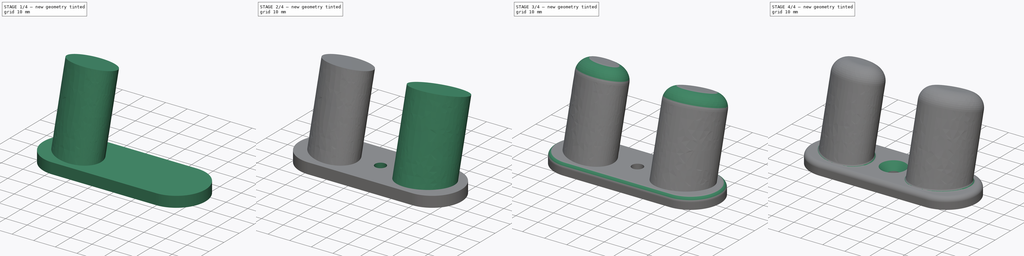
[diagram: build sequence overview — one tinted view per stage of 4, left to right]
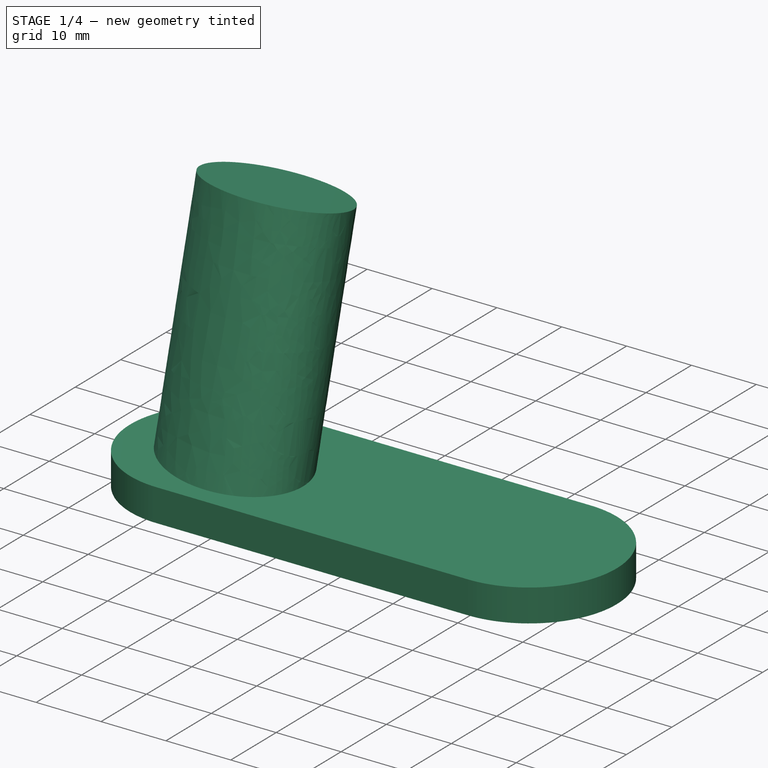
[diagram: stage 1 of 4 — iso view after this stage's code; geometry added in this stage tinted green]
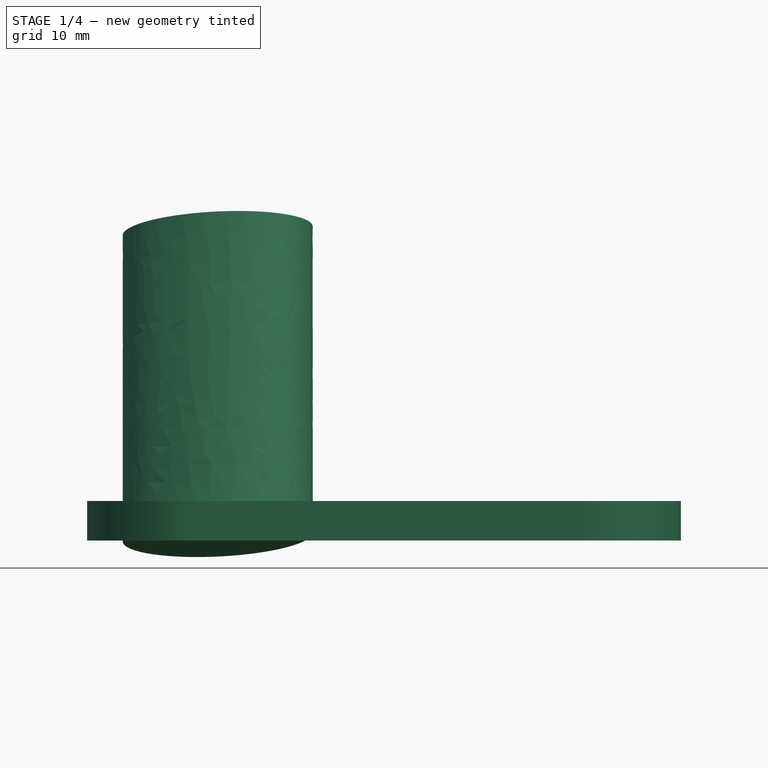
[diagram: stage 1 of 4 — front view after this stage's code; geometry added in this stage tinted green]
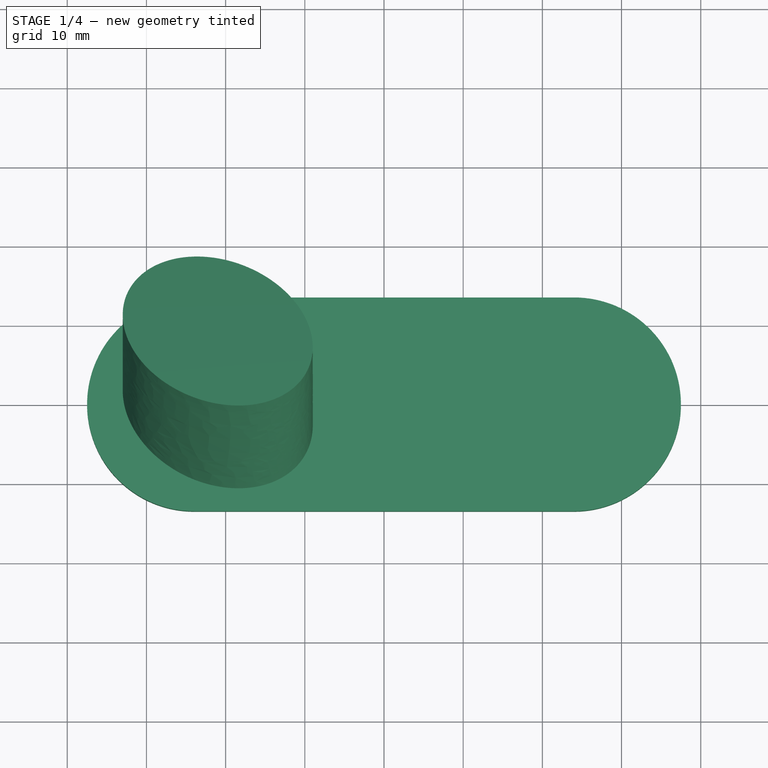
[diagram: stage 1 of 4 — top view after this stage's code; geometry added in this stage tinted green]
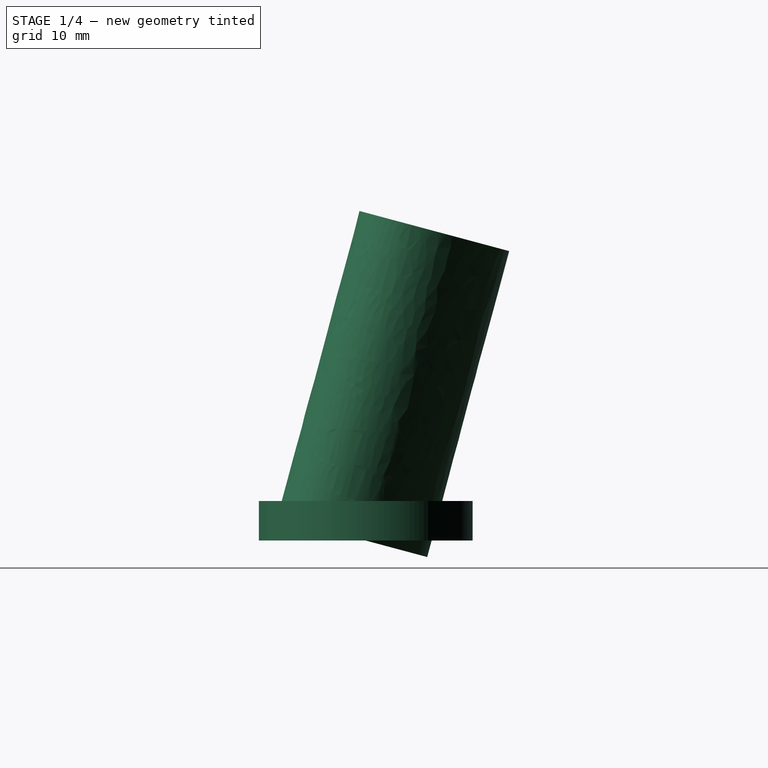
[diagram: stage 1 of 4 — right view after this stage's code; geometry added in this stage tinted green]
FCSTD DOCUMENT  (FreeCAD 0.20RUnknown)
Label: schuko_hook
License: All rights reserved
LicenseURL: http://en.wikipedia.org/wiki/All_rights_reserved
objects: Sketcher::SketchObject×3, PartDesign::Fillet×3, PartDesign::Pad×2, PartDesign::Pocket×1, PartDesign::Mirrored×1, PartDesign::SubtractiveBox×1, PartDesign::Chamfer×1, PartDesign::Body×1
note: 21 computed .brp shape members not serialized (recipe doc carries the construction recipe); baked Part::Feature solids carry a one-line shape summary decoded from their .brp

FEATURE [Sketcher::SketchObject] Sketch  label="BasePadSketch"
  FullyConstrained = true
  MapMode = 5
  Support = -> [XY_Plane]
  sketch-geometry (6):
    g0: ArcOfCircle CenterX=-24 CenterY=0 CenterZ=0 NormalX=0 NormalY=0 NormalZ=1 AngleXU=0 Radius=13.5 StartAngle=1.5708 EndAngle=4.71239
    g1: ArcOfCircle CenterX=24 CenterY=0 CenterZ=0 NormalX=0 NormalY=0 NormalZ=1 AngleXU=0 Radius=13.5 StartAngle=4.71239 EndAngle=7.85398
    g2: LineSegment StartX=-24 StartY=-13.5 StartZ=0 EndX=24 EndY=-13.5 EndZ=0
    g3: LineSegment StartX=24 StartY=13.5 StartZ=0 EndX=-24 EndY=13.5 EndZ=0
    g4: GeomPoint X=-37.5 Y=0 Z=0
    g5: GeomPoint X=37.5 Y=0 Z=0
  constraints (13):
    c: Tangent(g0,g2) = -1.5708
    c: Tangent(g2,g1) = -1.5708
    c: Tangent(g1,g3) = -1.5708
    c: Tangent(g3,g0) = -1.5708
    c: Equal(g0,g1)
    c: PointOnObject(g0,g-1)
    c: Symmetric(g0,g1,g-1)
    c: DistanceY(g0,g0) = 27
    c: PointOnObject(g4,g-1)
    c: PointOnObject(g5,g-1)
    c: PointOnObject(g4,g0)
    c: PointOnObject(g5,g1)
    c: DistanceX(g4,g5) = 75
FEATURE [PartDesign::Pad] Pad  label="BasePad"
  Direction = (0,0,1)
  Length = 5
  Length2 = 10
  Profile = -> Sketch
  ReferenceAxis = -> Sketch [N_Axis]
  Type = 0
FEATURE [Sketcher::SketchObject] Sketch001  label="ArmsSketch"
  AttachmentOffset = pos=(0,0,0) rot=(1,0,0;-0.261799rad)
  ExternalGeometry = -> [Sketch]
  FullyConstrained = true
  MapMode = 5
  Placement = pos=(0,0,0) rot=(1,0,0;6.02139rad)
  Support = -> [XY_Plane]
  sketch-geometry (11):
    g0: Ellipse CenterX=-21 CenterY=-1.75 CenterZ=0 NormalX=0 NormalY=0 NormalZ=1 MajorRadius=12.4535 MinorRadius=9.20626 AngleXU=2.73327
    g1: LineSegment StartX=-32.4297 StartY=3.19485 StartZ=0 EndX=-9.57033 EndY=-6.69485 EndZ=0
    g2: LineSegment StartX=-24.6555 StartY=-10.1994 StartZ=0 EndX=-17.3445 EndY=6.69941 EndZ=0
    g3: GeomPoint X=-28.6971 Y=1.58 Z=0
    g4: GeomPoint X=-13.3029 Y=-5.08 Z=0
    g5: LineSegment StartX=-9 StartY=8.04 StartZ=0 EndX=-9 EndY=-11.54 EndZ=0
    g6: GeomPoint X=-9 Y=0 Z=0
    g7: LineSegment StartX=-9 StartY=8.04 StartZ=0 EndX=-33 EndY=8.04 EndZ=0
    g8: LineSegment StartX=-33 StartY=8.04 StartZ=0 EndX=-33 EndY=-11.54 EndZ=0
    g9: LineSegment StartX=-33 StartY=-11.54 StartZ=0 EndX=-9 EndY=-11.54 EndZ=0
    g10: GeomPoint X=-37.5 Y=0 Z=0
  constraints (22):
    c: InternalAlignment(g1-g4 -> g0) x4
    c: Vertical(g5)
    c: Tangent(g0,g5)
    c: PointOnObject(g6,g-1)
    c: PointOnObject(g6,g5)
    c: Coincident(g5,g7)
    c: Horizontal(g7)
    c: Vertical(g8)
    c: Coincident(g8,g9)
    c: Coincident(g9,g5)
    c: Horizontal(g9)
    c: Coincident(g8,g7)
    c: Tangent(g0,g7)
    c: Tangent(g0,g8)
    c: Tangent(g0,g9)
    c: DistanceX(g9,g9) = 24
    c: DistanceY(g8,g3) = 13.12
    c: DistanceY(g7,g-4) = 5
    c: DistanceY(g-6,g8) = 1.5
    c: PointOnObject(g10,g-1)
    c: DistanceX(g10,g7) = 4.5
    c: PointOnObject(g10,g-3)
FEATURE [PartDesign::Pad] Pad001  label="ArmsPad"
  BaseFeature = -> Pad
  Direction = (0,0.258819,0.965926)
  Length = 40
  Length2 = 10
  Profile = -> Sketch001
  ReferenceAxis = -> Sketch001 [N_Axis]
  Type = 0
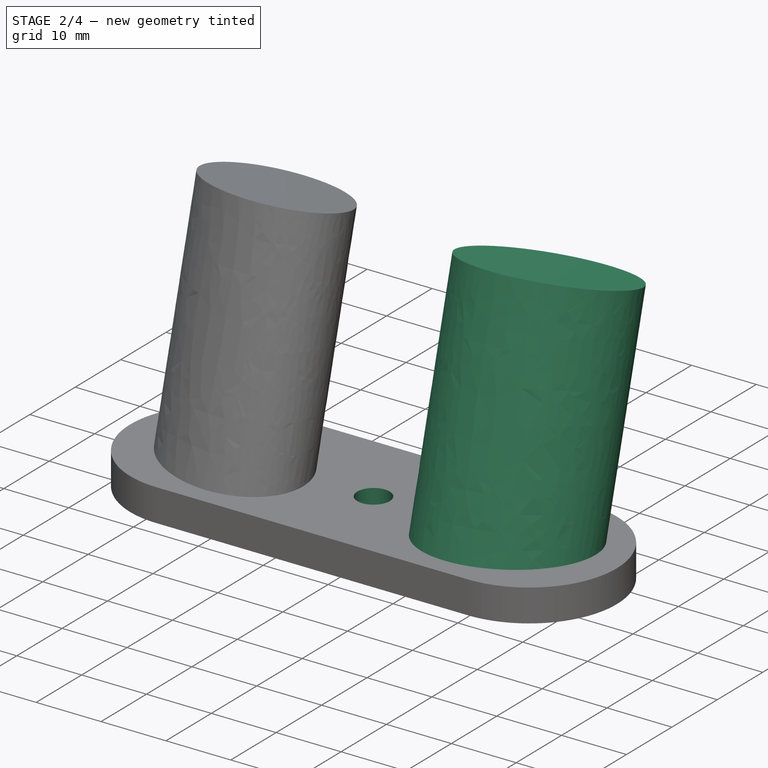
[diagram: stage 2 of 4 — iso view after this stage's code; geometry added in this stage tinted green]
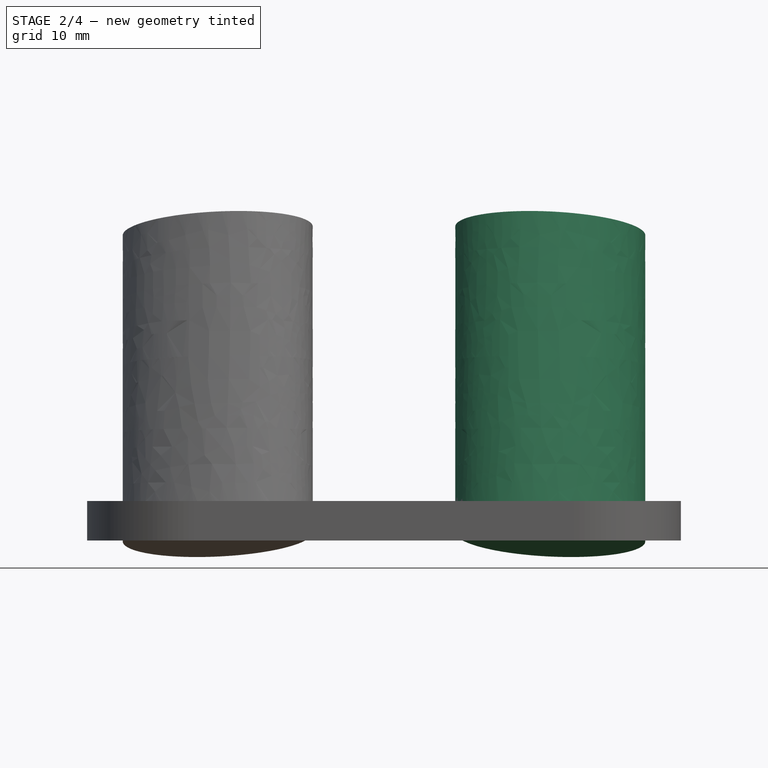
[diagram: stage 2 of 4 — front view after this stage's code; geometry added in this stage tinted green]
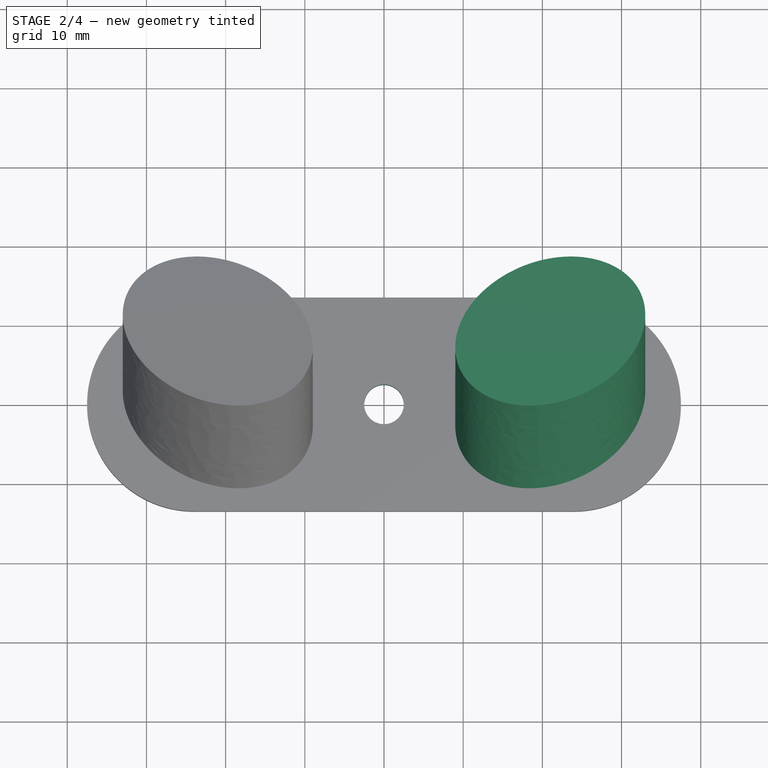
[diagram: stage 2 of 4 — top view after this stage's code; geometry added in this stage tinted green]
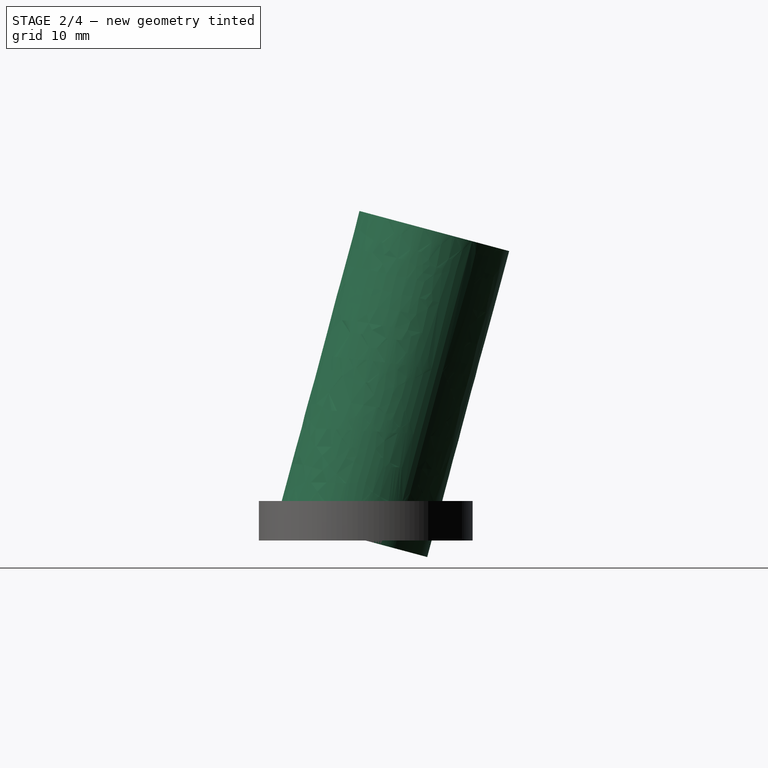
[diagram: stage 2 of 4 — right view after this stage's code; geometry added in this stage tinted green]
FEATURE [Sketcher::SketchObject] Sketch002  label="MountingHoleSketch"
  FullyConstrained = true
  MapMode = 5
  Support = -> [XY_Plane]
  sketch-geometry (1):
    g0: Circle CenterX=0 CenterY=0 CenterZ=0 NormalX=0 NormalY=0 NormalZ=1 AngleXU=0 Radius=2.5
  constraints (2):
    c: Coincident(g0,g-1)
    c: Diameter(g0) = 5
FEATURE [PartDesign::Pocket] Pocket  label="MountingHolePocket"
  BaseFeature = -> Pad001
  Direction = (0,0,-1)
  Length = 5
  Length2 = 5
  Profile = -> Sketch002
  ReferenceAxis = -> Sketch002 [N_Axis]
  Reversed = true
  Type = 1
FEATURE [PartDesign::Mirrored] Mirrored
  BaseFeature = -> Pocket
  MirrorPlane = -> Sketch001 [V_Axis]
  Originals = -> [Pad001]
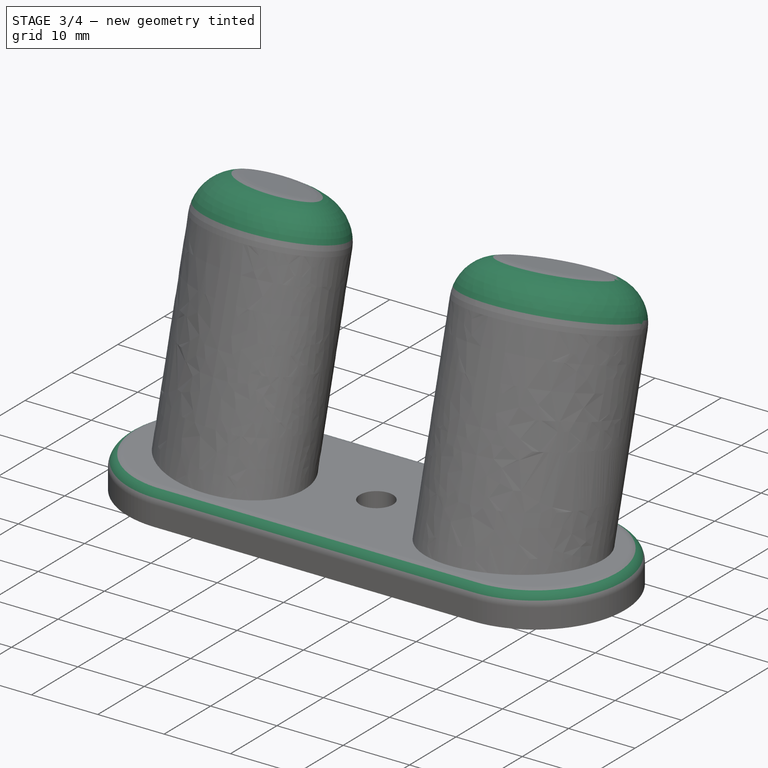
[diagram: stage 3 of 4 — iso view after this stage's code; geometry added in this stage tinted green]
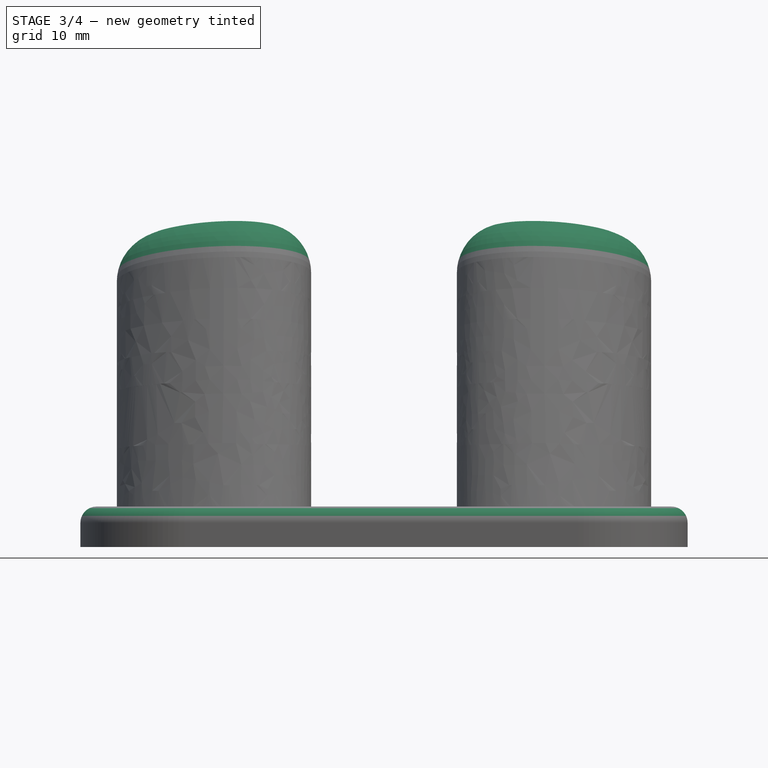
[diagram: stage 3 of 4 — front view after this stage's code; geometry added in this stage tinted green]
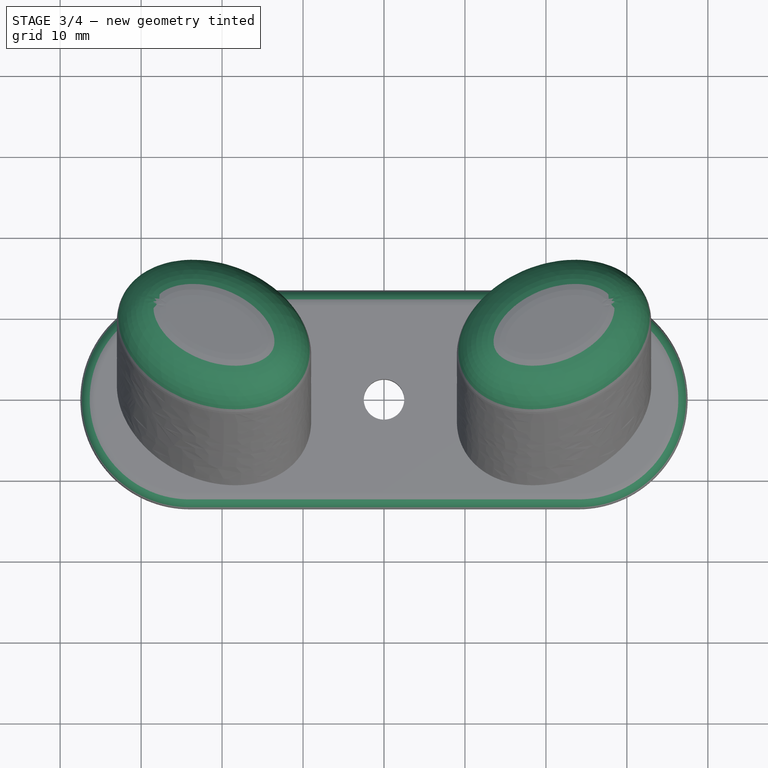
[diagram: stage 3 of 4 — top view after this stage's code; geometry added in this stage tinted green]
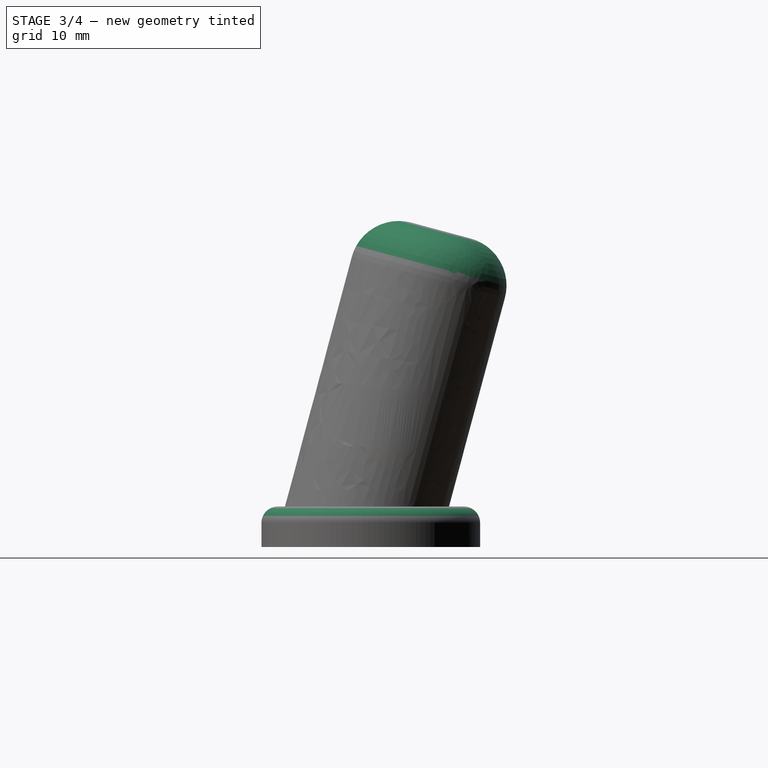
[diagram: stage 3 of 4 — right view after this stage's code; geometry added in this stage tinted green]
FEATURE [PartDesign::SubtractiveBox] Box  label="RemoveBackBox"
  AttacherType = Attacher::AttachEngine3D
  AttachmentOffset = pos=(-100,-100,0) rot=(0,0,1;0rad)
  BaseFeature = -> Mirrored
  Height = 20
  Length = 200
  MapMode = 5
  Placement = pos=(100,-100,0) rot=(0,1,0;3.14159rad)
  Support = -> [XY_Plane]
  Width = 200
FEATURE [PartDesign::Fillet] Fillet
  Base = -> Box [Edge27,Edge25]
  BaseFeature = -> Box
  Placement = pos=(100,-100,0) rot=(0,1,0;3.14159rad)
  Radius = 6
  SupportTransform = false
  UseAllEdges = false
FEATURE [PartDesign::Fillet] Fillet001
  Base = -> Fillet [Edge7,Edge9,Edge8,Edge6]
  BaseFeature = -> Fillet
  Placement = pos=(100,-100,0) rot=(0,1,0;3.14159rad)
  Radius = 2
  SupportTransform = false
  UseAllEdges = false
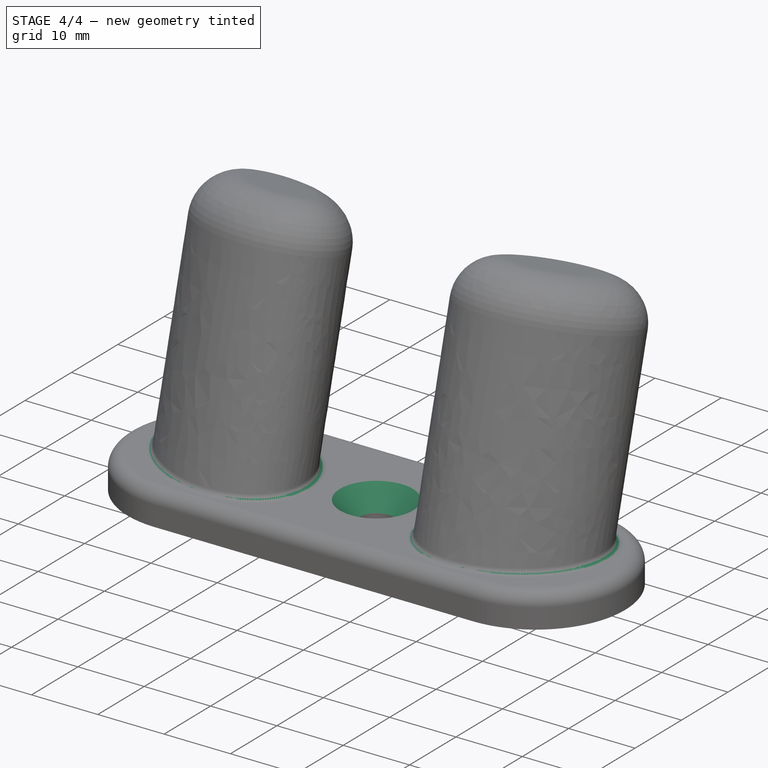
[diagram: stage 4 of 4 — iso view after this stage's code; geometry added in this stage tinted green]
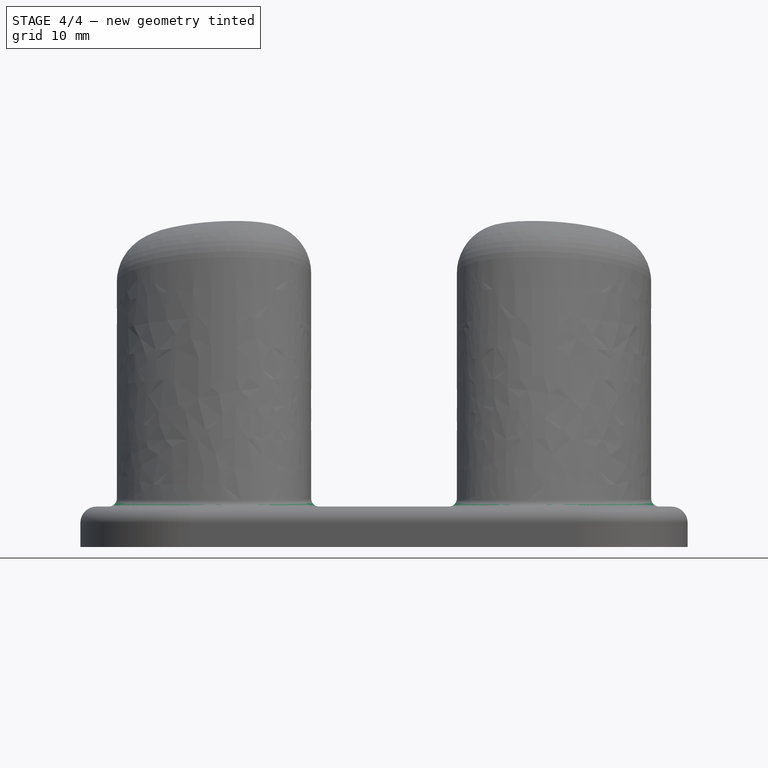
[diagram: stage 4 of 4 — front view after this stage's code; geometry added in this stage tinted green]
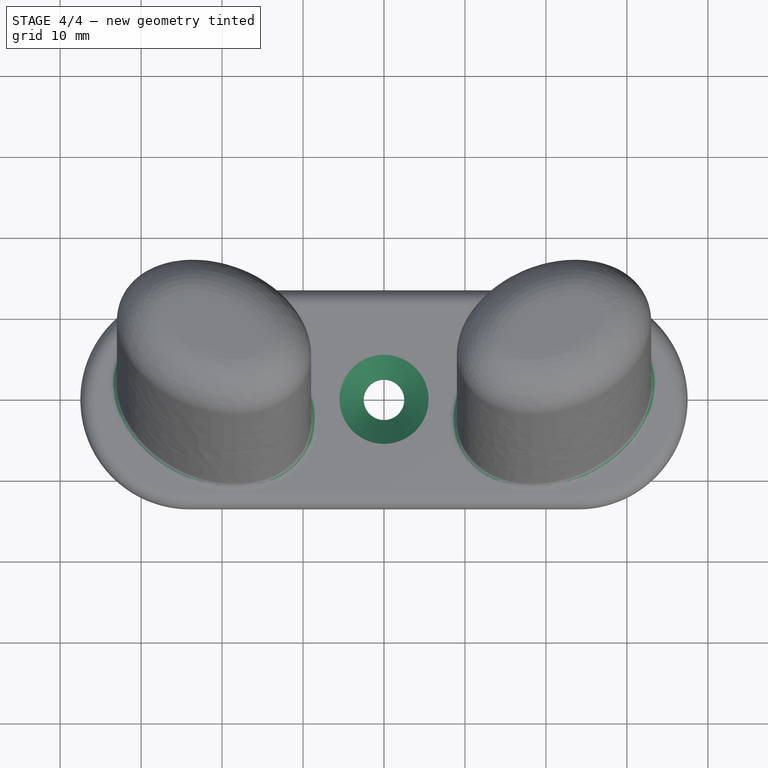
[diagram: stage 4 of 4 — top view after this stage's code; geometry added in this stage tinted green]
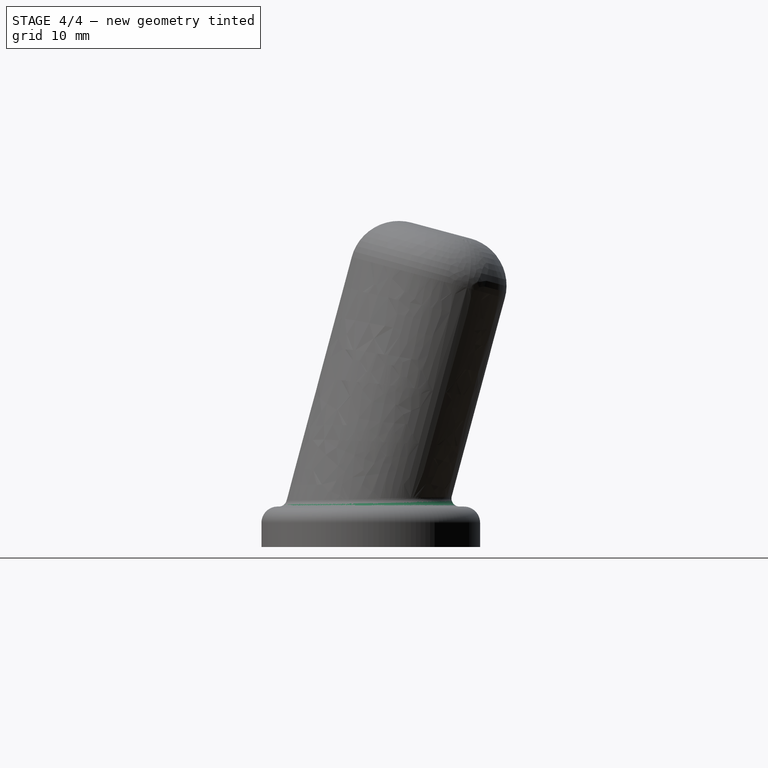
[diagram: stage 4 of 4 — right view after this stage's code; geometry added in this stage tinted green]
FEATURE [PartDesign::Fillet] Fillet002
  Base = -> Fillet001 [Edge5,Edge7]
  BaseFeature = -> Fillet001
  Placement = pos=(100,-100,0) rot=(0,1,0;3.14159rad)
  Radius = 1
  SupportTransform = false
  UseAllEdges = false
FEATURE [PartDesign::Chamfer] Chamfer
  Angle = 45
  Base = -> Fillet002 [Edge6]
  BaseFeature = -> Fillet002
  ChamferType = 0
  FlipDirection = false
  Placement = pos=(100,-100,0) rot=(0,1,0;3.14159rad)
  Size = 3
  Size2 = 1
  SupportTransform = false
  UseAllEdges = false
FEATURE [PartDesign::Body] Body
  Group = -> [Sketch,Pad,Sketch001,Pad001,Sketch002,Pocket,Mirrored,Box,Fillet,Fillet001,Fillet002,Chamfer]
  Origin = -> Origin
  Tip = -> Chamfer
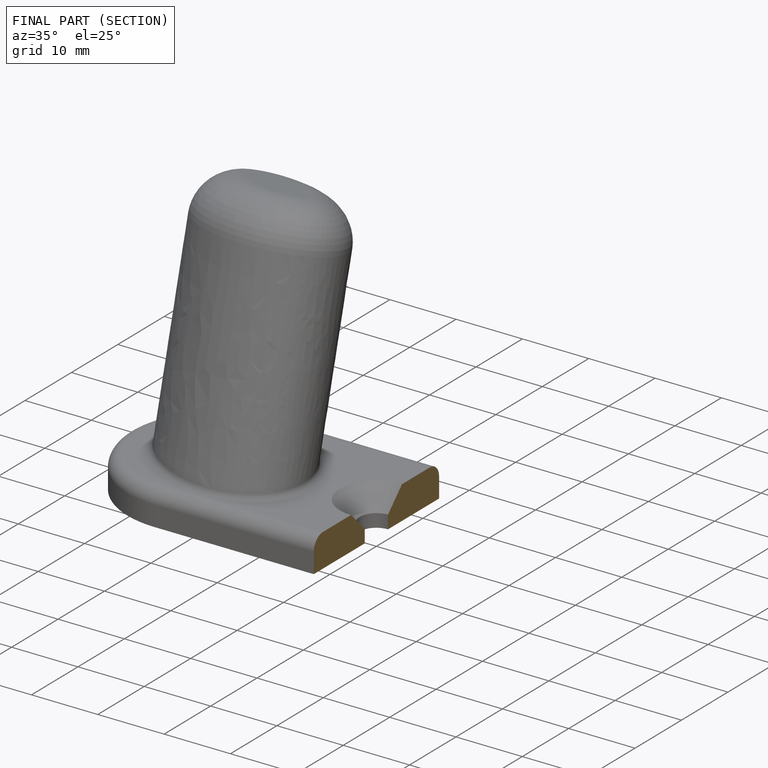
[diagram: finished part — half-section view (interior)]
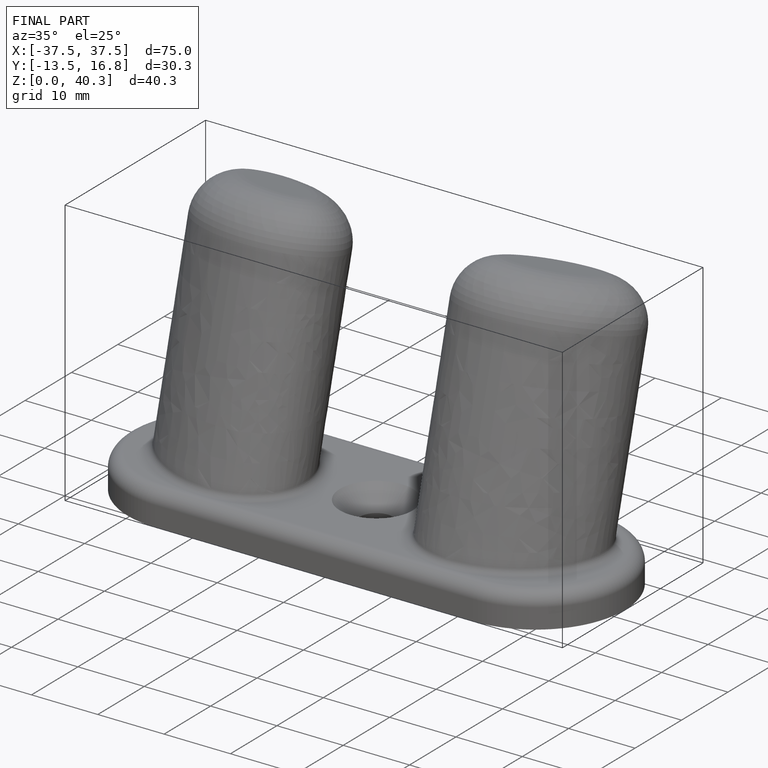
[diagram: finished part — iso view with bounding-box wireframe]
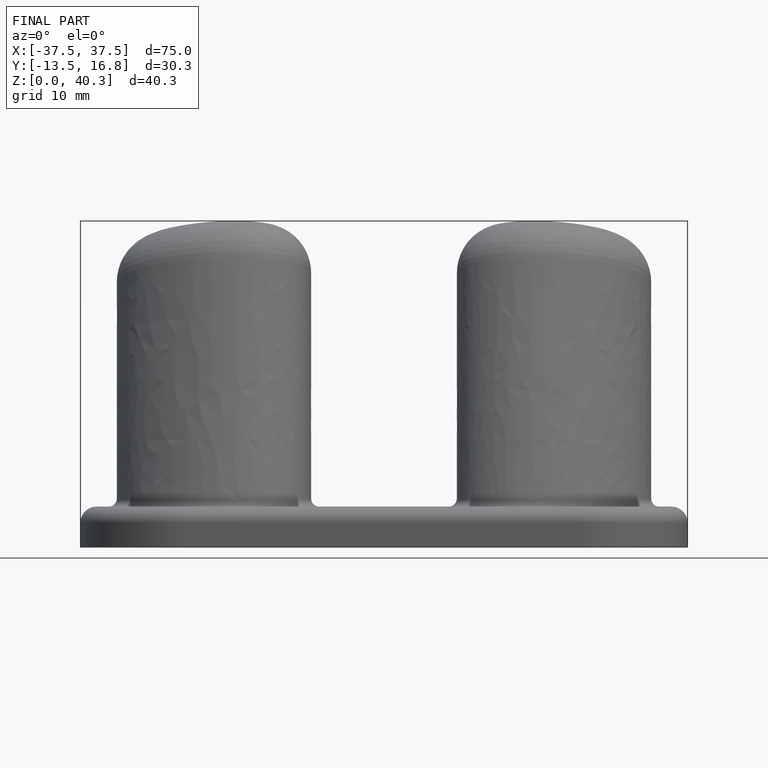
[diagram: finished part — front view with bounding-box wireframe]
